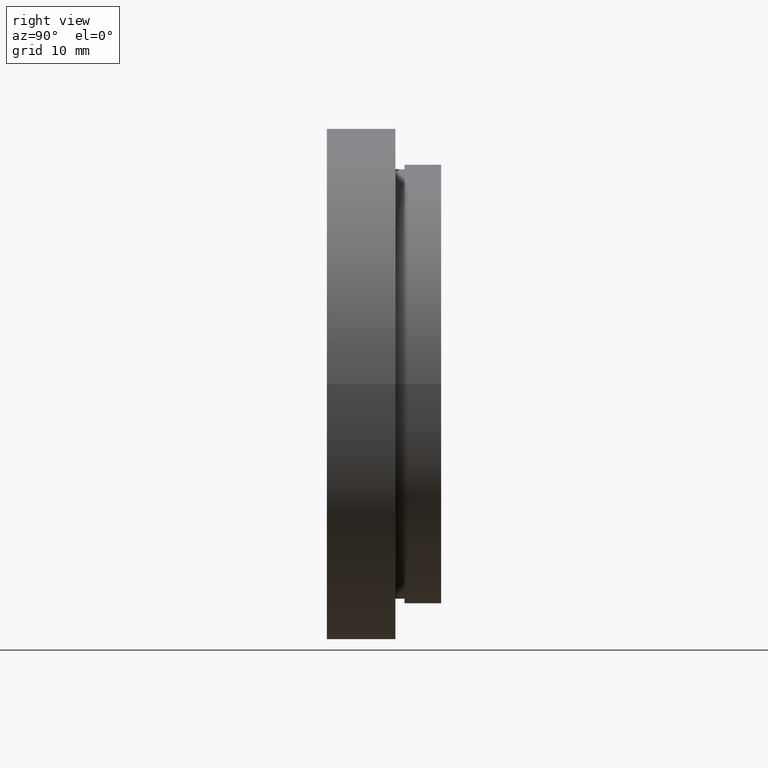
[diagram: clean part render]
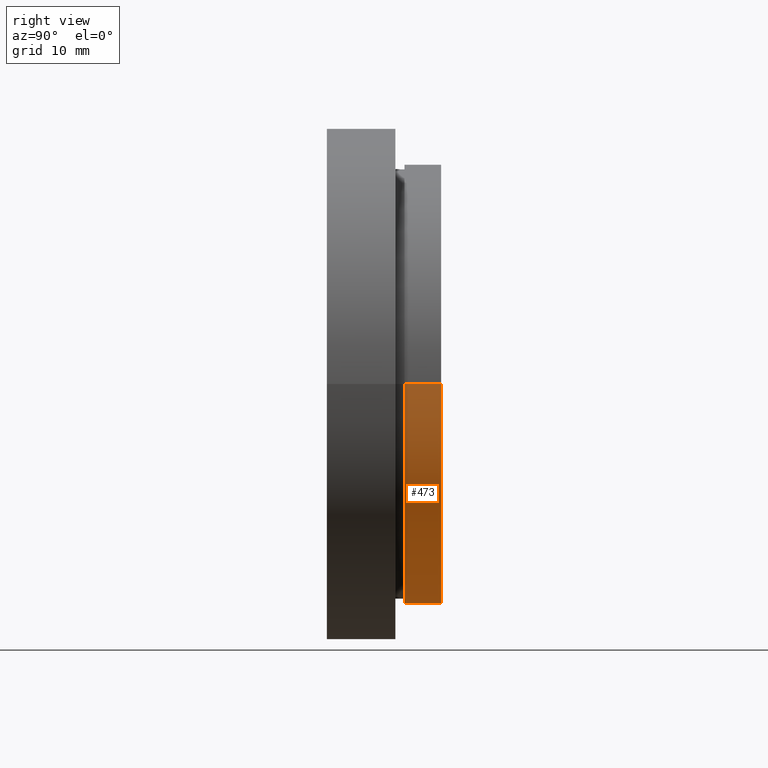
[diagram: same view with one face highlighted and labeled with its STEP entity id]
A machine part, right view. The second image highlights one B-rep face of the part: STEP entity #473.
In plain terms, the highlighted cylindrical surface (partial cylindrical patch) has radius 24 mm, axis along (-0, 1, -0).
Its self-contained STEP definition (entity closure, byte-faithful):
#10 = CARTESIAN_POINT ( 'NONE',  ( 0.0000000000000000000, 16.88601823708207700, 0.0000000000000000000 ) ) ;
#17 = ORIENTED_EDGE ( 'NONE', *, *, #617, .F. ) ;
#27 = CYLINDRICAL_SURFACE ( 'NONE', #460, 24.00000000000000400 ) ;
#40 = CARTESIAN_POINT ( 'NONE',  ( -24.00000000000000400, 12.49999999999999300, 0.0000000000000000000 ) ) ;
#61 = CARTESIAN_POINT ( 'NONE',  ( -24.00000000000000400, 16.88601823708207300, 0.0000000000000000000 ) ) ;
#83 = ORIENTED_EDGE ( 'NONE', *, *, #313, .T. ) ;
#85 = DIRECTION ( 'NONE',  ( -1.000000000000000000, -1.445602896647338900E-016, 0.0000000000000000000 ) ) ;
#90 = VERTEX_POINT ( 'NONE', #40 ) ;
#92 = CARTESIAN_POINT ( 'NONE',  ( 24.00000000000000400, 16.88601823708208000, 2.939152317953648300E-015 ) ) ;
#93 = VECTOR ( 'NONE', #589, 1000.000000000000000 ) ;
#94 = CIRCLE ( 'NONE', #151, 24.00000000000000400 ) ;
#108 = DIRECTION ( 'NONE',  ( -1.224646799147351000E-016, 1.000000000000000000, -0.0000000000000000000 ) ) ;
#119 = CARTESIAN_POINT ( 'NONE',  ( 24.00000000000000400, 8.500000000000000000, 2.939152317953648300E-015 ) ) ;
#133 = DIRECTION ( 'NONE',  ( -1.224646799147351000E-016, 1.000000000000000000, -0.0000000000000000000 ) ) ;
#151 = AXIS2_PLACEMENT_3D ( 'NONE', #495, #340, #85 ) ;
#174 = CARTESIAN_POINT ( 'NONE',  ( 24.00000000000000400, 12.50000000000000000, 2.939152317953648300E-015 ) ) ;
#181 = FACE_OUTER_BOUND ( 'NONE', #338, .T. ) ;
#186 = ORIENTED_EDGE ( 'NONE', *, *, #265, .T. ) ;
#217 = CARTESIAN_POINT ( 'NONE',  ( -24.00000000000000400, 8.499999999999992900, 0.0000000000000000000 ) ) ;
#254 = EDGE_CURVE ( 'NONE', #356, #532, #511, .T. ) ;
#265 = EDGE_CURVE ( 'NONE', #356, #453, #287, .T. ) ;
#287 = CIRCLE ( 'NONE', #555, 24.00000000000000400 ) ;
#313 = EDGE_CURVE ( 'NONE', #453, #90, #539, .T. ) ;
#338 = EDGE_LOOP ( 'NONE', ( #410, #186, #83, #17 ) ) ;
#340 = DIRECTION ( 'NONE',  ( -1.224646799147351000E-016, 1.000000000000000000, -0.0000000000000000000 ) ) ;
#356 = VERTEX_POINT ( 'NONE', #119 ) ;
#405 = CARTESIAN_POINT ( 'NONE',  ( 1.026991039163387900E-015, 8.499999999999996400, 0.0000000000000000000 ) ) ;
#410 = ORIENTED_EDGE ( 'NONE', *, *, #254, .F. ) ;
#424 = VECTOR ( 'NONE', #108, 1000.000000000000000 ) ;
#453 = VERTEX_POINT ( 'NONE', #217 ) ;
#460 = AXIS2_PLACEMENT_3D ( 'NONE', #10, #133, #530 ) ;
#473 = ADVANCED_FACE ( 'NONE', ( #181 ), #27, .T. ) ;
#495 = CARTESIAN_POINT ( 'NONE',  ( 5.371323195044473300E-016, 12.49999999999999600, 0.0000000000000000000 ) ) ;
#511 = LINE ( 'NONE', #92, #424 ) ;
#530 = DIRECTION ( 'NONE',  ( -1.000000000000000000, -1.445602896647338900E-016, 0.0000000000000000000 ) ) ;
#532 = VERTEX_POINT ( 'NONE', #174 ) ;
#539 = LINE ( 'NONE', #61, #93 ) ;
#555 = AXIS2_PLACEMENT_3D ( 'NONE', #405, #575, #574 ) ;
#574 = DIRECTION ( 'NONE',  ( -1.000000000000000000, -1.445602896647338900E-016, 0.0000000000000000000 ) ) ;
#575 = DIRECTION ( 'NONE',  ( -1.224646799147351000E-016, 1.000000000000000000, -0.0000000000000000000 ) ) ;
#589 = DIRECTION ( 'NONE',  ( -1.224646799147351000E-016, 1.000000000000000000, -0.0000000000000000000 ) ) ;
#617 = EDGE_CURVE ( 'NONE', #532, #90, #94, .T. ) ;